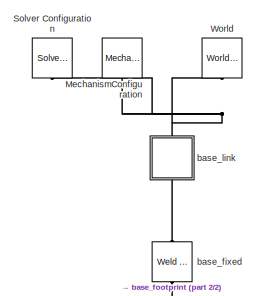
[diagram: root canvas - part 1/2, top center region]
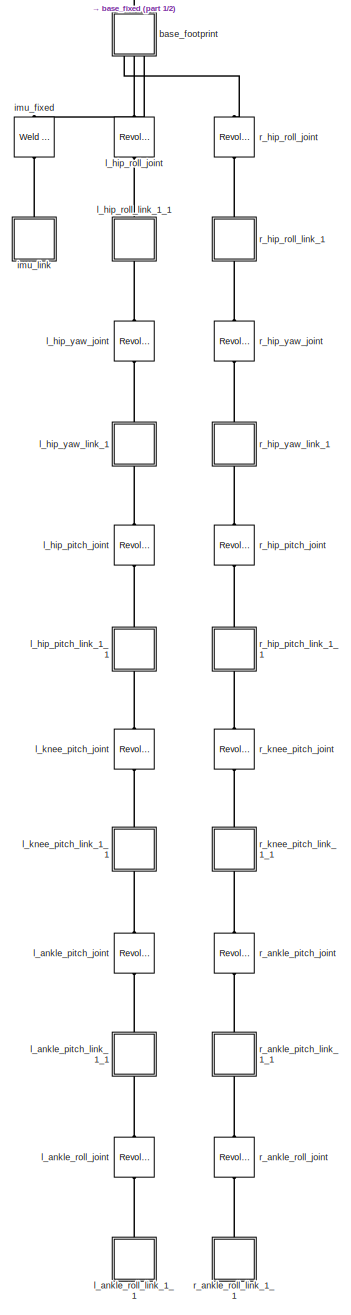
[diagram: root canvas - part 2/2, most of the canvas]
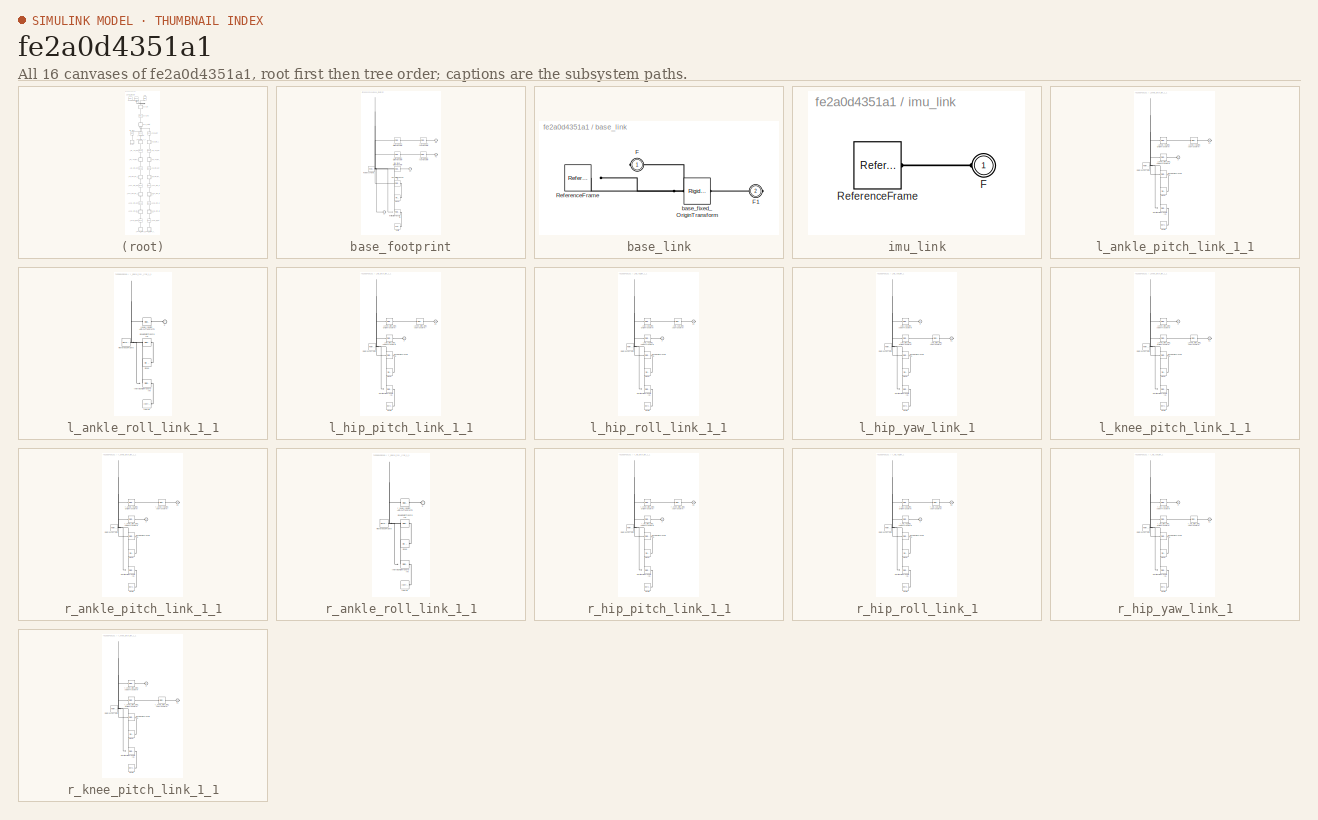
[diagram: thumbnail index - all 16 canvases of the model, root first then tree order]
MODEL slx_fe2a0d4351a1
KIND model
CONFIG AbsTol = auto
CONFIG EnableMultiTasking = off
CONFIG FixedStep = auto
CONFIG MaxStep = auto
CONFIG MinStep = auto
CONFIG RelTol = 1e-3
CONFIG SampleTimeConstraint = Unconstrained
CONFIG Solver = VariableStepAuto
CONFIG SolverName = VariableStepAuto
CONFIG StartTime = 0.0
CONFIG StopTime = 10.0
BLOCK [Reference] MechanismConfiguration  REF=sm_lib/Utilities/Mechanism
Configuration
  Ports = [0, 0, 0, 0, 0, 0, 1]
  SourceBlock = sm_lib/Utilities/Mechanism\nConfiguration
  SourceProductBaseCode = MS
  SourceProductName = Simscape Multibody
  SourceType = Mechanism\nConfiguration
BLOCK [Reference] Solver Configuration  REF=nesl_utility/Solver
Configuration
  Ports = [0, 0, 0, 0, 0, 0, 1]
  SourceBlock = nesl_utility/Solver\nConfiguration
  SourceProductBaseCode = SS
  SourceProductName = Simscape
  SourceType = Solver\nConfiguration
BLOCK [Reference] World  REF=sm_lib/Frames and
Transforms/World Frame
  Ports = [0, 0, 0, 0, 0, 0, 1]
  SourceBlock = sm_lib/Frames and\nTransforms/World Frame
  SourceProductBaseCode = MS
  SourceProductName = Simscape Multibody
  SourceType = World Frame
BLOCK [Reference] base_fixed  REF=sm_lib/Joints/Weld Joint
  Ports = [0, 0, 0, 0, 0, 1, 1]
  SourceBlock = sm_lib/Joints/Weld Joint
  SourceProductBaseCode = MS
  SourceProductName = Simscape Multibody
  SourceType = Weld Joint
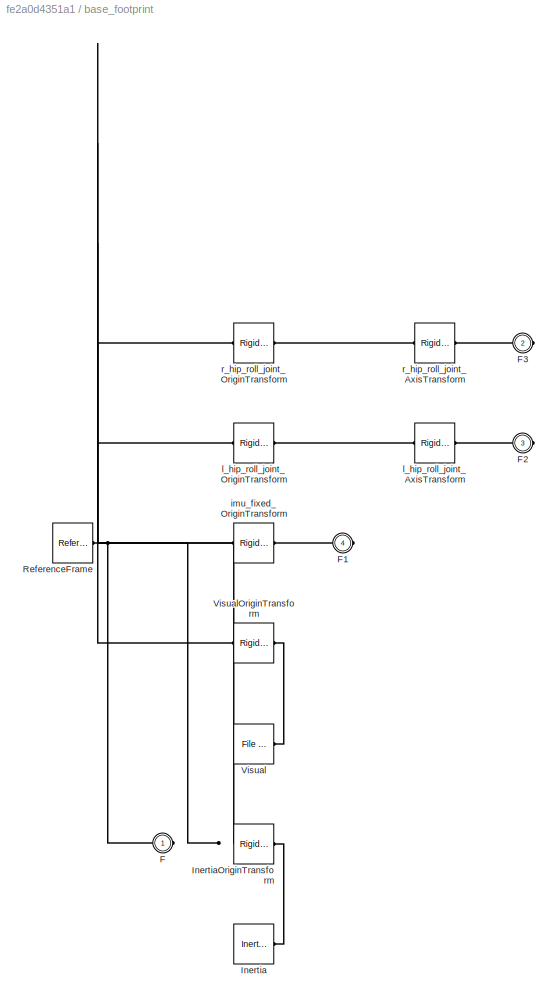
BLOCK [SubSystem] base_footprint
  Ports = [0, 0, 0, 0, 0, 1, 3]
  RequestExecContextInheritance = off
BLOCK [PMIOPort] base_footprint/F
  Side = Left
BLOCK [PMIOPort] base_footprint/F1
  Port = 4
  Side = Right
BLOCK [PMIOPort] base_footprint/F2
  Port = 3
  Side = Right
BLOCK [PMIOPort] base_footprint/F3
  Port = 2
  Side = Right
BLOCK [Reference] base_footprint/Inertia  REF=sm_lib/Body Elements/Inertia
  Ports = [0, 0, 0, 0, 0, 0, 1]
  SourceBlock = sm_lib/Body Elements/Inertia
  SourceProductBaseCode = MS
  SourceProductName = Simscape Multibody
  SourceType = Inertia
BLOCK [Reference] base_footprint/InertiaOriginTransform  REF=sm_lib/Frames and
Transforms/Rigid
Transform
  Ports = [0, 0, 0, 0, 0, 1, 1]
  SourceBlock = sm_lib/Frames and\nTransforms/Rigid\nTransform
  SourceProductBaseCode = MS
  SourceProductName = Simscape Multibody
  SourceType = Rigid\nTransform
BLOCK [Reference] base_footprint/ReferenceFrame  REF=sm_lib/Frames and
Transforms/Reference
Frame
  Ports = [0, 0, 0, 0, 0, 0, 1]
  SourceBlock = sm_lib/Frames and\nTransforms/Reference\nFrame
  SourceProductBaseCode = MS
  SourceProductName = Simscape Multibody
  SourceType = Reference\nFrame
BLOCK [Reference] base_footprint/Visual  REF=sm_lib/Body Elements/File Solid
  Ports = [0, 0, 0, 0, 0, 0, 1]
  SourceBlock = sm_lib/Body Elements/File Solid
  SourceProductBaseCode = MS
  SourceProductName = Simscape Multibody
  SourceType = File Solid
BLOCK [Reference] base_footprint/VisualOriginTransform  REF=sm_lib/Frames and
Transforms/Rigid
Transform
  Ports = [0, 0, 0, 0, 0, 1, 1]
  SourceBlock = sm_lib/Frames and\nTransforms/Rigid\nTransform
  SourceProductBaseCode = MS
  SourceProductName = Simscape Multibody
  SourceType = Rigid\nTransform
BLOCK [Reference] base_footprint/imu_fixed_OriginTransform  REF=sm_lib/Frames and
Transforms/Rigid
Transform
  Ports = [0, 0, 0, 0, 0, 1, 1]
  SourceBlock = sm_lib/Frames and\nTransforms/Rigid\nTransform
  SourceProductBaseCode = MS
  SourceProductName = Simscape Multibody
  SourceType = Rigid\nTransform
BLOCK [Reference] base_footprint/l_hip_roll_joint_AxisTransform  REF=sm_lib/Frames and
Transforms/Rigid
Transform
  Ports = [0, 0, 0, 0, 0, 1, 1]
  SourceBlock = sm_lib/Frames and\nTransforms/Rigid\nTransform
  SourceProductBaseCode = MS
  SourceProductName = Simscape Multibody
  SourceType = Rigid\nTransform
BLOCK [Reference] base_footprint/l_hip_roll_joint_OriginTransform  REF=sm_lib/Frames and
Transforms/Rigid
Transform
  Ports = [0, 0, 0, 0, 0, 1, 1]
  SourceBlock = sm_lib/Frames and\nTransforms/Rigid\nTransform
  SourceProductBaseCode = MS
  SourceProductName = Simscape Multibody
  SourceType = Rigid\nTransform
BLOCK [Reference] base_footprint/r_hip_roll_joint_AxisTransform  REF=sm_lib/Frames and
Transforms/Rigid
Transform
  Ports = [0, 0, 0, 0, 0, 1, 1]
  SourceBlock = sm_lib/Frames and\nTransforms/Rigid\nTransform
  SourceProductBaseCode = MS
  SourceProductName = Simscape Multibody
  SourceType = Rigid\nTransform
BLOCK [Reference] base_footprint/r_hip_roll_joint_OriginTransform  REF=sm_lib/Frames and
Transforms/Rigid
Transform
  Ports = [0, 0, 0, 0, 0, 1, 1]
  SourceBlock = sm_lib/Frames and\nTransforms/Rigid\nTransform
  SourceProductBaseCode = MS
  SourceProductName = Simscape Multibody
  SourceType = Rigid\nTransform
BLOCK [SubSystem] base_link
  Ports = [0, 0, 0, 0, 0, 1, 1]
  RequestExecContextInheritance = off
BLOCK [PMIOPort] base_link/F
  Side = Left
BLOCK [PMIOPort] base_link/F1
  Port = 2
  Side = Right
BLOCK [Reference] base_link/ReferenceFrame  REF=sm_lib/Frames and
Transforms/Reference
Frame
  Ports = [0, 0, 0, 0, 0, 0, 1]
  SourceBlock = sm_lib/Frames and\nTransforms/Reference\nFrame
  SourceProductBaseCode = MS
  SourceProductName = Simscape Multibody
  SourceType = Reference\nFrame
BLOCK [Reference] base_link/base_fixed_OriginTransform  REF=sm_lib/Frames and
Transforms/Rigid
Transform
  Ports = [0, 0, 0, 0, 0, 1, 1]
  SourceBlock = sm_lib/Frames and\nTransforms/Rigid\nTransform
  SourceProductBaseCode = MS
  SourceProductName = Simscape Multibody
  SourceType = Rigid\nTransform
BLOCK [Reference] imu_fixed  REF=sm_lib/Joints/Weld Joint
  Ports = [0, 0, 0, 0, 0, 1, 1]
  SourceBlock = sm_lib/Joints/Weld Joint
  SourceProductBaseCode = MS
  SourceProductName = Simscape Multibody
  SourceType = Weld Joint
BLOCK [SubSystem] imu_link
  Ports = [0, 0, 0, 0, 0, 1]
  RequestExecContextInheritance = off
BLOCK [PMIOPort] imu_link/F
  Side = Left
BLOCK [Reference] imu_link/ReferenceFrame  REF=sm_lib/Frames and
Transforms/Reference
Frame
  Ports = [0, 0, 0, 0, 0, 0, 1]
  SourceBlock = sm_lib/Frames and\nTransforms/Reference\nFrame
  SourceProductBaseCode = MS
  SourceProductName = Simscape Multibody
  SourceType = Reference\nFrame
BLOCK [Reference] l_ankle_pitch_joint  REF=sm_lib/Joints/Revolute Joint
  Ports = [0, 0, 0, 0, 0, 1, 1]
  SourceBlock = sm_lib/Joints/Revolute Joint
  SourceProductBaseCode = MS
  SourceProductName = Simscape Multibody
  SourceType = Revolute Joint
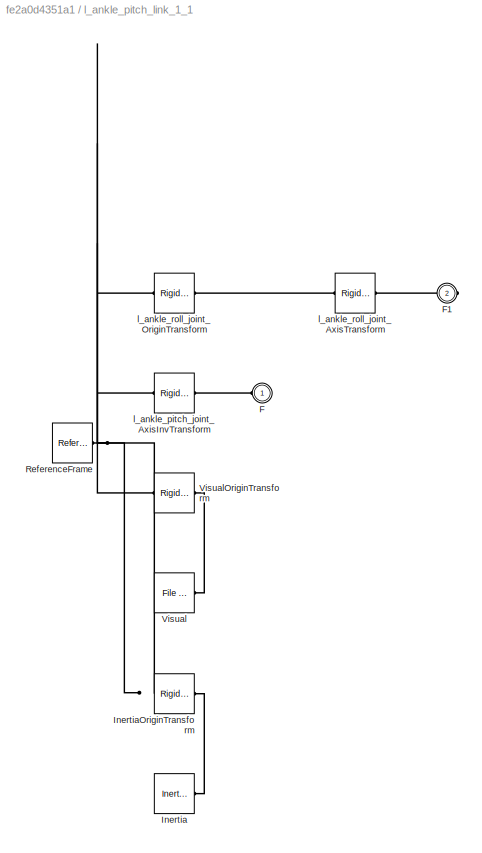
BLOCK [SubSystem] l_ankle_pitch_link_1_1
  Ports = [0, 0, 0, 0, 0, 1, 1]
  RequestExecContextInheritance = off
BLOCK [PMIOPort] l_ankle_pitch_link_1_1/F
  Side = Left
BLOCK [PMIOPort] l_ankle_pitch_link_1_1/F1
  Port = 2
  Side = Right
BLOCK [Reference] l_ankle_pitch_link_1_1/Inertia  REF=sm_lib/Body Elements/Inertia
  Ports = [0, 0, 0, 0, 0, 0, 1]
  SourceBlock = sm_lib/Body Elements/Inertia
  SourceProductBaseCode = MS
  SourceProductName = Simscape Multibody
  SourceType = Inertia
BLOCK [Reference] l_ankle_pitch_link_1_1/InertiaOriginTransform  REF=sm_lib/Frames and
Transforms/Rigid
Transform
  Ports = [0, 0, 0, 0, 0, 1, 1]
  SourceBlock = sm_lib/Frames and\nTransforms/Rigid\nTransform
  SourceProductBaseCode = MS
  SourceProductName = Simscape Multibody
  SourceType = Rigid\nTransform
BLOCK [Reference] l_ankle_pitch_link_1_1/ReferenceFrame  REF=sm_lib/Frames and
Transforms/Reference
Frame
  Ports = [0, 0, 0, 0, 0, 0, 1]
  SourceBlock = sm_lib/Frames and\nTransforms/Reference\nFrame
  SourceProductBaseCode = MS
  SourceProductName = Simscape Multibody
  SourceType = Reference\nFrame
BLOCK [Reference] l_ankle_pitch_link_1_1/Visual  REF=sm_lib/Body Elements/File Solid
  Ports = [0, 0, 0, 0, 0, 0, 1]
  SourceBlock = sm_lib/Body Elements/File Solid
  SourceProductBaseCode = MS
  SourceProductName = Simscape Multibody
  SourceType = File Solid
BLOCK [Reference] l_ankle_pitch_link_1_1/VisualOriginTransform  REF=sm_lib/Frames and
Transforms/Rigid
Transform
  Ports = [0, 0, 0, 0, 0, 1, 1]
  SourceBlock = sm_lib/Frames and\nTransforms/Rigid\nTransform
  SourceProductBaseCode = MS
  SourceProductName = Simscape Multibody
  SourceType = Rigid\nTransform
BLOCK [Reference] l_ankle_pitch_link_1_1/l_ankle_pitch_joint_AxisInvTransform  REF=sm_lib/Frames and
Transforms/Rigid
Transform
  Ports = [0, 0, 0, 0, 0, 1, 1]
  SourceBlock = sm_lib/Frames and\nTransforms/Rigid\nTransform
  SourceProductBaseCode = MS
  SourceProductName = Simscape Multibody
  SourceType = Rigid\nTransform
BLOCK [Reference] l_ankle_pitch_link_1_1/l_ankle_roll_joint_AxisTransform  REF=sm_lib/Frames and
Transforms/Rigid
Transform
  Ports = [0, 0, 0, 0, 0, 1, 1]
  SourceBlock = sm_lib/Frames and\nTransforms/Rigid\nTransform
  SourceProductBaseCode = MS
  SourceProductName = Simscape Multibody
  SourceType = Rigid\nTransform
BLOCK [Reference] l_ankle_pitch_link_1_1/l_ankle_roll_joint_OriginTransform  REF=sm_lib/Frames and
Transforms/Rigid
Transform
  Ports = [0, 0, 0, 0, 0, 1, 1]
  SourceBlock = sm_lib/Frames and\nTransforms/Rigid\nTransform
  SourceProductBaseCode = MS
  SourceProductName = Simscape Multibody
  SourceType = Rigid\nTransform
BLOCK [Reference] l_ankle_roll_joint  REF=sm_lib/Joints/Revolute Joint
  Ports = [0, 0, 0, 0, 0, 1, 1]
  SourceBlock = sm_lib/Joints/Revolute Joint
  SourceProductBaseCode = MS
  SourceProductName = Simscape Multibody
  SourceType = Revolute Joint
BLOCK [SubSystem] l_ankle_roll_link_1_1
  Ports = [0, 0, 0, 0, 0, 1]
  RequestExecContextInheritance = off
BLOCK [PMIOPort] l_ankle_roll_link_1_1/F
  Side = Left
BLOCK [Reference] l_ankle_roll_link_1_1/Inertia  REF=sm_lib/Body Elements/Inertia
  Ports = [0, 0, 0, 0, 0, 0, 1]
  SourceBlock = sm_lib/Body Elements/Inertia
  SourceProductBaseCode = MS
  SourceProductName = Simscape Multibody
  SourceType = Inertia
BLOCK [Reference] l_ankle_roll_link_1_1/InertiaOriginTransform  REF=sm_lib/Frames and
Transforms/Rigid
Transform
  Ports = [0, 0, 0, 0, 0, 1, 1]
  SourceBlock = sm_lib/Frames and\nTransforms/Rigid\nTransform
  SourceProductBaseCode = MS
  SourceProductName = Simscape Multibody
  SourceType = Rigid\nTransform
BLOCK [Reference] l_ankle_roll_link_1_1/ReferenceFrame  REF=sm_lib/Frames and
Transforms/Reference
Frame
  Ports = [0, 0, 0, 0, 0, 0, 1]
  SourceBlock = sm_lib/Frames and\nTransforms/Reference\nFrame
  SourceProductBaseCode = MS
  SourceProductName = Simscape Multibody
  SourceType = Reference\nFrame
BLOCK [Reference] l_ankle_roll_link_1_1/Visual  REF=sm_lib/Body Elements/File Solid
  Ports = [0, 0, 0, 0, 0, 0, 1]
  SourceBlock = sm_lib/Body Elements/File Solid
  SourceProductBaseCode = MS
  SourceProductName = Simscape Multibody
  SourceType = File Solid
BLOCK [Reference] l_ankle_roll_link_1_1/VisualOriginTransform  REF=sm_lib/Frames and
Transforms/Rigid
Transform
  Ports = [0, 0, 0, 0, 0, 1, 1]
  SourceBlock = sm_lib/Frames and\nTransforms/Rigid\nTransform
  SourceProductBaseCode = MS
  SourceProductName = Simscape Multibody
  SourceType = Rigid\nTransform
BLOCK [Reference] l_ankle_roll_link_1_1/l_ankle_roll_joint_AxisInvTransform  REF=sm_lib/Frames and
Transforms/Rigid
Transform
  Ports = [0, 0, 0, 0, 0, 1, 1]
  SourceBlock = sm_lib/Frames and\nTransforms/Rigid\nTransform
  SourceProductBaseCode = MS
  SourceProductName = Simscape Multibody
  SourceType = Rigid\nTransform
BLOCK [Reference] l_hip_pitch_joint  REF=sm_lib/Joints/Revolute Joint
  Ports = [0, 0, 0, 0, 0, 1, 1]
  SourceBlock = sm_lib/Joints/Revolute Joint
  SourceProductBaseCode = MS
  SourceProductName = Simscape Multibody
  SourceType = Revolute Joint
BLOCK [SubSystem] l_hip_pitch_link_1_1
  Ports = [0, 0, 0, 0, 0, 1, 1]
  RequestExecContextInheritance = off
BLOCK [PMIOPort] l_hip_pitch_link_1_1/F
  Side = Left
BLOCK [PMIOPort] l_hip_pitch_link_1_1/F1
  Port = 2
  Side = Right
BLOCK [Reference] l_hip_pitch_link_1_1/Inertia  REF=sm_lib/Body Elements/Inertia
  Ports = [0, 0, 0, 0, 0, 0, 1]
  SourceBlock = sm_lib/Body Elements/Inertia
  SourceProductBaseCode = MS
  SourceProductName = Simscape Multibody
  SourceType = Inertia
BLOCK [Reference] l_hip_pitch_link_1_1/InertiaOriginTransform  REF=sm_lib/Frames and
Transforms/Rigid
Transform
  Ports = [0, 0, 0, 0, 0, 1, 1]
  SourceBlock = sm_lib/Frames and\nTransforms/Rigid\nTransform
  SourceProductBaseCode = MS
  SourceProductName = Simscape Multibody
  SourceType = Rigid\nTransform
BLOCK [Reference] l_hip_pitch_link_1_1/ReferenceFrame  REF=sm_lib/Frames and
Transforms/Reference
Frame
  Ports = [0, 0, 0, 0, 0, 0, 1]
  SourceBlock = sm_lib/Frames and\nTransforms/Reference\nFrame
  SourceProductBaseCode = MS
  SourceProductName = Simscape Multibody
  SourceType = Reference\nFrame
BLOCK [Reference] l_hip_pitch_link_1_1/Visual  REF=sm_lib/Body Elements/File Solid
  Ports = [0, 0, 0, 0, 0, 0, 1]
  SourceBlock = sm_lib/Body Elements/File Solid
  SourceProductBaseCode = MS
  SourceProductName = Simscape Multibody
  SourceType = File Solid
BLOCK [Reference] l_hip_pitch_link_1_1/VisualOriginTransform  REF=sm_lib/Frames and
Transforms/Rigid
Transform
  Ports = [0, 0, 0, 0, 0, 1, 1]
  SourceBlock = sm_lib/Frames and\nTransforms/Rigid\nTransform
  SourceProductBaseCode = MS
  SourceProductName = Simscape Multibody
  SourceType = Rigid\nTransform
BLOCK [Reference] l_hip_pitch_link_1_1/l_hip_pitch_joint_AxisInvTransform  REF=sm_lib/Frames and
Transforms/Rigid
Transform
  Ports = [0, 0, 0, 0, 0, 1, 1]
  SourceBlock = sm_lib/Frames and\nTransforms/Rigid\nTransform
  SourceProductBaseCode = MS
  SourceProductName = Simscape Multibody
  SourceType = Rigid\nTransform
BLOCK [Reference] l_hip_pitch_link_1_1/l_knee_pitch_joint_AxisTransform  REF=sm_lib/Frames and
Transforms/Rigid
Transform
  Ports = [0, 0, 0, 0, 0, 1, 1]
  SourceBlock = sm_lib/Frames and\nTransforms/Rigid\nTransform
  SourceProductBaseCode = MS
  SourceProductName = Simscape Multibody
  SourceType = Rigid\nTransform
BLOCK [Reference] l_hip_pitch_link_1_1/l_knee_pitch_joint_OriginTransform  REF=sm_lib/Frames and
Transforms/Rigid
Transform
  Ports = [0, 0, 0, 0, 0, 1, 1]
  SourceBlock = sm_lib/Frames and\nTransforms/Rigid\nTransform
  SourceProductBaseCode = MS
  SourceProductName = Simscape Multibody
  SourceType = Rigid\nTransform
BLOCK [Reference] l_hip_roll_joint  REF=sm_lib/Joints/Revolute Joint
  Ports = [0, 0, 0, 0, 0, 1, 1]
  SourceBlock = sm_lib/Joints/Revolute Joint
  SourceProductBaseCode = MS
  SourceProductName = Simscape Multibody
  SourceType = Revolute Joint
BLOCK [SubSystem] l_hip_roll_link_1_1
  Ports = [0, 0, 0, 0, 0, 1, 1]
  RequestExecContextInheritance = off
BLOCK [PMIOPort] l_hip_roll_link_1_1/F
  Side = Left
BLOCK [PMIOPort] l_hip_roll_link_1_1/F1
  Port = 2
  Side = Right
BLOCK [Reference] l_hip_roll_link_1_1/Inertia  REF=sm_lib/Body Elements/Inertia
  Ports = [0, 0, 0, 0, 0, 0, 1]
  SourceBlock = sm_lib/Body Elements/Inertia
  SourceProductBaseCode = MS
  SourceProductName = Simscape Multibody
  SourceType = Inertia
BLOCK [Reference] l_hip_roll_link_1_1/InertiaOriginTransform  REF=sm_lib/Frames and
Transforms/Rigid
Transform
  Ports = [0, 0, 0, 0, 0, 1, 1]
  SourceBlock = sm_lib/Frames and\nTransforms/Rigid\nTransform
  SourceProductBaseCode = MS
  SourceProductName = Simscape Multibody
  SourceType = Rigid\nTransform
BLOCK [Reference] l_hip_roll_link_1_1/ReferenceFrame  REF=sm_lib/Frames and
Transforms/Reference
Frame
  Ports = [0, 0, 0, 0, 0, 0, 1]
  SourceBlock = sm_lib/Frames and\nTransforms/Reference\nFrame
  SourceProductBaseCode = MS
  SourceProductName = Simscape Multibody
  SourceType = Reference\nFrame
BLOCK [Reference] l_hip_roll_link_1_1/Visual  REF=sm_lib/Body Elements/File Solid
  Ports = [0, 0, 0, 0, 0, 0, 1]
  SourceBlock = sm_lib/Body Elements/File Solid
  SourceProductBaseCode = MS
  SourceProductName = Simscape Multibody
  SourceType = File Solid
BLOCK [Reference] l_hip_roll_link_1_1/VisualOriginTransform  REF=sm_lib/Frames and
Transforms/Rigid
Transform
  Ports = [0, 0, 0, 0, 0, 1, 1]
  SourceBlock = sm_lib/Frames and\nTransforms/Rigid\nTransform
  SourceProductBaseCode = MS
  SourceProductName = Simscape Multibody
  SourceType = Rigid\nTransform
BLOCK [Reference] l_hip_roll_link_1_1/l_hip_roll_joint_AxisInvTransform  REF=sm_lib/Frames and
Transforms/Rigid
Transform
  Ports = [0, 0, 0, 0, 0, 1, 1]
  SourceBlock = sm_lib/Frames and\nTransforms/Rigid\nTransform
  SourceProductBaseCode = MS
  SourceProductName = Simscape Multibody
  SourceType = Rigid\nTransform
BLOCK [Reference] l_hip_roll_link_1_1/l_hip_yaw_joint_AxisTransform  REF=sm_lib/Frames and
Transforms/Rigid
Transform
  Ports = [0, 0, 0, 0, 0, 1, 1]
  SourceBlock = sm_lib/Frames and\nTransforms/Rigid\nTransform
  SourceProductBaseCode = MS
  SourceProductName = Simscape Multibody
  SourceType = Rigid\nTransform
BLOCK [Reference] l_hip_roll_link_1_1/l_hip_yaw_joint_OriginTransform  REF=sm_lib/Frames and
Transforms/Rigid
Transform
  Ports = [0, 0, 0, 0, 0, 1, 1]
  SourceBlock = sm_lib/Frames and\nTransforms/Rigid\nTransform
  SourceProductBaseCode = MS
  SourceProductName = Simscape Multibody
  SourceType = Rigid\nTransform
BLOCK [Reference] l_hip_yaw_joint  REF=sm_lib/Joints/Revolute Joint
  Ports = [0, 0, 0, 0, 0, 1, 1]
  SourceBlock = sm_lib/Joints/Revolute Joint
  SourceProductBaseCode = MS
  SourceProductName = Simscape Multibody
  SourceType = Revolute Joint
BLOCK [SubSystem] l_hip_yaw_link_1
  Ports = [0, 0, 0, 0, 0, 1, 1]
  RequestExecContextInheritance = off
BLOCK [PMIOPort] l_hip_yaw_link_1/F
  Side = Left
BLOCK [PMIOPort] l_hip_yaw_link_1/F1
  Port = 2
  Side = Right
BLOCK [Reference] l_hip_yaw_link_1/Inertia  REF=sm_lib/Body Elements/Inertia
  Ports = [0, 0, 0, 0, 0, 0, 1]
  SourceBlock = sm_lib/Body Elements/Inertia
  SourceProductBaseCode = MS
  SourceProductName = Simscape Multibody
  SourceType = Inertia
BLOCK [Reference] l_hip_yaw_link_1/InertiaOriginTransform  REF=sm_lib/Frames and
Transforms/Rigid
Transform
  Ports = [0, 0, 0, 0, 0, 1, 1]
  SourceBlock = sm_lib/Frames and\nTransforms/Rigid\nTransform
  SourceProductBaseCode = MS
  SourceProductName = Simscape Multibody
  SourceType = Rigid\nTransform
BLOCK [Reference] l_hip_yaw_link_1/ReferenceFrame  REF=sm_lib/Frames and
Transforms/Reference
Frame
  Ports = [0, 0, 0, 0, 0, 0, 1]
  SourceBlock = sm_lib/Frames and\nTransforms/Reference\nFrame
  SourceProductBaseCode = MS
  SourceProductName = Simscape Multibody
  SourceType = Reference\nFrame
BLOCK [Reference] l_hip_yaw_link_1/Visual  REF=sm_lib/Body Elements/File Solid
  Ports = [0, 0, 0, 0, 0, 0, 1]
  SourceBlock = sm_lib/Body Elements/File Solid
  SourceProductBaseCode = MS
  SourceProductName = Simscape Multibody
  SourceType = File Solid
BLOCK [Reference] l_hip_yaw_link_1/VisualOriginTransform  REF=sm_lib/Frames and
Transforms/Rigid
Transform
  Ports = [0, 0, 0, 0, 0, 1, 1]
  SourceBlock = sm_lib/Frames and\nTransforms/Rigid\nTransform
  SourceProductBaseCode = MS
  SourceProductName = Simscape Multibody
  SourceType = Rigid\nTransform
BLOCK [Reference] l_hip_yaw_link_1/l_hip_pitch_joint_AxisTransform  REF=sm_lib/Frames and
Transforms/Rigid
Transform
  Ports = [0, 0, 0, 0, 0, 1, 1]
  SourceBlock = sm_lib/Frames and\nTransforms/Rigid\nTransform
  SourceProductBaseCode = MS
  SourceProductName = Simscape Multibody
  SourceType = Rigid\nTransform
BLOCK [Reference] l_hip_yaw_link_1/l_hip_pitch_joint_OriginTransform  REF=sm_lib/Frames and
Transforms/Rigid
Transform
  Ports = [0, 0, 0, 0, 0, 1, 1]
  SourceBlock = sm_lib/Frames and\nTransforms/Rigid\nTransform
  SourceProductBaseCode = MS
  SourceProductName = Simscape Multibody
  SourceType = Rigid\nTransform
BLOCK [Reference] l_hip_yaw_link_1/l_hip_yaw_joint_AxisInvTransform  REF=sm_lib/Frames and
Transforms/Rigid
Transform
  Ports = [0, 0, 0, 0, 0, 1, 1]
  SourceBlock = sm_lib/Frames and\nTransforms/Rigid\nTransform
  SourceProductBaseCode = MS
  SourceProductName = Simscape Multibody
  SourceType = Rigid\nTransform
BLOCK [Reference] l_knee_pitch_joint  REF=sm_lib/Joints/Revolute Joint
  Ports = [0, 0, 0, 0, 0, 1, 1]
  SourceBlock = sm_lib/Joints/Revolute Joint
  SourceProductBaseCode = MS
  SourceProductName = Simscape Multibody
  SourceType = Revolute Joint
BLOCK [SubSystem] l_knee_pitch_link_1_1
  Ports = [0, 0, 0, 0, 0, 1, 1]
  RequestExecContextInheritance = off
BLOCK [PMIOPort] l_knee_pitch_link_1_1/F
  Side = Left
BLOCK [PMIOPort] l_knee_pitch_link_1_1/F1
  Port = 2
  Side = Right
BLOCK [Reference] l_knee_pitch_link_1_1/Inertia  REF=sm_lib/Body Elements/Inertia
  Ports = [0, 0, 0, 0, 0, 0, 1]
  SourceBlock = sm_lib/Body Elements/Inertia
  SourceProductBaseCode = MS
  SourceProductName = Simscape Multibody
  SourceType = Inertia
BLOCK [Reference] l_knee_pitch_link_1_1/InertiaOriginTransform  REF=sm_lib/Frames and
Transforms/Rigid
Transform
  Ports = [0, 0, 0, 0, 0, 1, 1]
  SourceBlock = sm_lib/Frames and\nTransforms/Rigid\nTransform
  SourceProductBaseCode = MS
  SourceProductName = Simscape Multibody
  SourceType = Rigid\nTransform
BLOCK [Reference] l_knee_pitch_link_1_1/ReferenceFrame  REF=sm_lib/Frames and
Transforms/Reference
Frame
  Ports = [0, 0, 0, 0, 0, 0, 1]
  SourceBlock = sm_lib/Frames and\nTransforms/Reference\nFrame
  SourceProductBaseCode = MS
  SourceProductName = Simscape Multibody
  SourceType = Reference\nFrame
BLOCK [Reference] l_knee_pitch_link_1_1/Visual  REF=sm_lib/Body Elements/File Solid
  Ports = [0, 0, 0, 0, 0, 0, 1]
  SourceBlock = sm_lib/Body Elements/File Solid
  SourceProductBaseCode = MS
  SourceProductName = Simscape Multibody
  SourceType = File Solid
BLOCK [Reference] l_knee_pitch_link_1_1/VisualOriginTransform  REF=sm_lib/Frames and
Transforms/Rigid
Transform
  Ports = [0, 0, 0, 0, 0, 1, 1]
  SourceBlock = sm_lib/Frames and\nTransforms/Rigid\nTransform
  SourceProductBaseCode = MS
  SourceProductName = Simscape Multibody
  SourceType = Rigid\nTransform
BLOCK [Reference] l_knee_pitch_link_1_1/l_ankle_pitch_joint_AxisTransform  REF=sm_lib/Frames and
Transforms/Rigid
Transform
  Ports = [0, 0, 0, 0, 0, 1, 1]
  SourceBlock = sm_lib/Frames and\nTransforms/Rigid\nTransform
  SourceProductBaseCode = MS
  SourceProductName = Simscape Multibody
  SourceType = Rigid\nTransform
BLOCK [Reference] l_knee_pitch_link_1_1/l_ankle_pitch_joint_OriginTransform  REF=sm_lib/Frames and
Transforms/Rigid
Transform
  Ports = [0, 0, 0, 0, 0, 1, 1]
  SourceBlock = sm_lib/Frames and\nTransforms/Rigid\nTransform
  SourceProductBaseCode = MS
  SourceProductName = Simscape Multibody
  SourceType = Rigid\nTransform
BLOCK [Reference] l_knee_pitch_link_1_1/l_knee_pitch_joint_AxisInvTransform  REF=sm_lib/Frames and
Transforms/Rigid
Transform
  Ports = [0, 0, 0, 0, 0, 1, 1]
  SourceBlock = sm_lib/Frames and\nTransforms/Rigid\nTransform
  SourceProductBaseCode = MS
  SourceProductName = Simscape Multibody
  SourceType = Rigid\nTransform
BLOCK [Reference] r_ankle_pitch_joint  REF=sm_lib/Joints/Revolute Joint
  Ports = [0, 0, 0, 0, 0, 1, 1]
  SourceBlock = sm_lib/Joints/Revolute Joint
  SourceProductBaseCode = MS
  SourceProductName = Simscape Multibody
  SourceType = Revolute Joint
BLOCK [SubSystem] r_ankle_pitch_link_1_1
  Ports = [0, 0, 0, 0, 0, 1, 1]
  RequestExecContextInheritance = off
BLOCK [PMIOPort] r_ankle_pitch_link_1_1/F
  Side = Left
BLOCK [PMIOPort] r_ankle_pitch_link_1_1/F1
  Port = 2
  Side = Right
BLOCK [Reference] r_ankle_pitch_link_1_1/Inertia  REF=sm_lib/Body Elements/Inertia
  Ports = [0, 0, 0, 0, 0, 0, 1]
  SourceBlock = sm_lib/Body Elements/Inertia
  SourceProductBaseCode = MS
  SourceProductName = Simscape Multibody
  SourceType = Inertia
BLOCK [Reference] r_ankle_pitch_link_1_1/InertiaOriginTransform  REF=sm_lib/Frames and
Transforms/Rigid
Transform
  Ports = [0, 0, 0, 0, 0, 1, 1]
  SourceBlock = sm_lib/Frames and\nTransforms/Rigid\nTransform
  SourceProductBaseCode = MS
  SourceProductName = Simscape Multibody
  SourceType = Rigid\nTransform
BLOCK [Reference] r_ankle_pitch_link_1_1/ReferenceFrame  REF=sm_lib/Frames and
Transforms/Reference
Frame
  Ports = [0, 0, 0, 0, 0, 0, 1]
  SourceBlock = sm_lib/Frames and\nTransforms/Reference\nFrame
  SourceProductBaseCode = MS
  SourceProductName = Simscape Multibody
  SourceType = Reference\nFrame
BLOCK [Reference] r_ankle_pitch_link_1_1/Visual  REF=sm_lib/Body Elements/File Solid
  Ports = [0, 0, 0, 0, 0, 0, 1]
  SourceBlock = sm_lib/Body Elements/File Solid
  SourceProductBaseCode = MS
  SourceProductName = Simscape Multibody
  SourceType = File Solid
BLOCK [Reference] r_ankle_pitch_link_1_1/VisualOriginTransform  REF=sm_lib/Frames and
Transforms/Rigid
Transform
  Ports = [0, 0, 0, 0, 0, 1, 1]
  SourceBlock = sm_lib/Frames and\nTransforms/Rigid\nTransform
  SourceProductBaseCode = MS
  SourceProductName = Simscape Multibody
  SourceType = Rigid\nTransform
BLOCK [Reference] r_ankle_pitch_link_1_1/r_ankle_pitch_joint_AxisInvTransform  REF=sm_lib/Frames and
Transforms/Rigid
Transform
  Ports = [0, 0, 0, 0, 0, 1, 1]
  SourceBlock = sm_lib/Frames and\nTransforms/Rigid\nTransform
  SourceProductBaseCode = MS
  SourceProductName = Simscape Multibody
  SourceType = Rigid\nTransform
BLOCK [Reference] r_ankle_pitch_link_1_1/r_ankle_roll_joint_AxisTransform  REF=sm_lib/Frames and
Transforms/Rigid
Transform
  Ports = [0, 0, 0, 0, 0, 1, 1]
  SourceBlock = sm_lib/Frames and\nTransforms/Rigid\nTransform
  SourceProductBaseCode = MS
  SourceProductName = Simscape Multibody
  SourceType = Rigid\nTransform
BLOCK [Reference] r_ankle_pitch_link_1_1/r_ankle_roll_joint_OriginTransform  REF=sm_lib/Frames and
Transforms/Rigid
Transform
  Ports = [0, 0, 0, 0, 0, 1, 1]
  SourceBlock = sm_lib/Frames and\nTransforms/Rigid\nTransform
  SourceProductBaseCode = MS
  SourceProductName = Simscape Multibody
  SourceType = Rigid\nTransform
BLOCK [Reference] r_ankle_roll_joint  REF=sm_lib/Joints/Revolute Joint
  Ports = [0, 0, 0, 0, 0, 1, 1]
  SourceBlock = sm_lib/Joints/Revolute Joint
  SourceProductBaseCode = MS
  SourceProductName = Simscape Multibody
  SourceType = Revolute Joint
BLOCK [SubSystem] r_ankle_roll_link_1_1
  Ports = [0, 0, 0, 0, 0, 1]
  RequestExecContextInheritance = off
BLOCK [PMIOPort] r_ankle_roll_link_1_1/F
  Side = Left
BLOCK [Reference] r_ankle_roll_link_1_1/Inertia  REF=sm_lib/Body Elements/Inertia
  Ports = [0, 0, 0, 0, 0, 0, 1]
  SourceBlock = sm_lib/Body Elements/Inertia
  SourceProductBaseCode = MS
  SourceProductName = Simscape Multibody
  SourceType = Inertia
BLOCK [Reference] r_ankle_roll_link_1_1/InertiaOriginTransform  REF=sm_lib/Frames and
Transforms/Rigid
Transform
  Ports = [0, 0, 0, 0, 0, 1, 1]
  SourceBlock = sm_lib/Frames and\nTransforms/Rigid\nTransform
  SourceProductBaseCode = MS
  SourceProductName = Simscape Multibody
  SourceType = Rigid\nTransform
BLOCK [Reference] r_ankle_roll_link_1_1/ReferenceFrame  REF=sm_lib/Frames and
Transforms/Reference
Frame
  Ports = [0, 0, 0, 0, 0, 0, 1]
  SourceBlock = sm_lib/Frames and\nTransforms/Reference\nFrame
  SourceProductBaseCode = MS
  SourceProductName = Simscape Multibody
  SourceType = Reference\nFrame
BLOCK [Reference] r_ankle_roll_link_1_1/Visual  REF=sm_lib/Body Elements/File Solid
  Ports = [0, 0, 0, 0, 0, 0, 1]
  SourceBlock = sm_lib/Body Elements/File Solid
  SourceProductBaseCode = MS
  SourceProductName = Simscape Multibody
  SourceType = File Solid
BLOCK [Reference] r_ankle_roll_link_1_1/VisualOriginTransform  REF=sm_lib/Frames and
Transforms/Rigid
Transform
  Ports = [0, 0, 0, 0, 0, 1, 1]
  SourceBlock = sm_lib/Frames and\nTransforms/Rigid\nTransform
  SourceProductBaseCode = MS
  SourceProductName = Simscape Multibody
  SourceType = Rigid\nTransform
BLOCK [Reference] r_ankle_roll_link_1_1/r_ankle_roll_joint_AxisInvTransform  REF=sm_lib/Frames and
Transforms/Rigid
Transform
  Ports = [0, 0, 0, 0, 0, 1, 1]
  SourceBlock = sm_lib/Frames and\nTransforms/Rigid\nTransform
  SourceProductBaseCode = MS
  SourceProductName = Simscape Multibody
  SourceType = Rigid\nTransform
BLOCK [Reference] r_hip_pitch_joint  REF=sm_lib/Joints/Revolute Joint
  Ports = [0, 0, 0, 0, 0, 1, 1]
  SourceBlock = sm_lib/Joints/Revolute Joint
  SourceProductBaseCode = MS
  SourceProductName = Simscape Multibody
  SourceType = Revolute Joint
BLOCK [SubSystem] r_hip_pitch_link_1_1
  Ports = [0, 0, 0, 0, 0, 1, 1]
  RequestExecContextInheritance = off
BLOCK [PMIOPort] r_hip_pitch_link_1_1/F
  Side = Left
BLOCK [PMIOPort] r_hip_pitch_link_1_1/F1
  Port = 2
  Side = Right
BLOCK [Reference] r_hip_pitch_link_1_1/Inertia  REF=sm_lib/Body Elements/Inertia
  Ports = [0, 0, 0, 0, 0, 0, 1]
  SourceBlock = sm_lib/Body Elements/Inertia
  SourceProductBaseCode = MS
  SourceProductName = Simscape Multibody
  SourceType = Inertia
BLOCK [Reference] r_hip_pitch_link_1_1/InertiaOriginTransform  REF=sm_lib/Frames and
Transforms/Rigid
Transform
  Ports = [0, 0, 0, 0, 0, 1, 1]
  SourceBlock = sm_lib/Frames and\nTransforms/Rigid\nTransform
  SourceProductBaseCode = MS
  SourceProductName = Simscape Multibody
  SourceType = Rigid\nTransform
BLOCK [Reference] r_hip_pitch_link_1_1/ReferenceFrame  REF=sm_lib/Frames and
Transforms/Reference
Frame
  Ports = [0, 0, 0, 0, 0, 0, 1]
  SourceBlock = sm_lib/Frames and\nTransforms/Reference\nFrame
  SourceProductBaseCode = MS
  SourceProductName = Simscape Multibody
  SourceType = Reference\nFrame
BLOCK [Reference] r_hip_pitch_link_1_1/Visual  REF=sm_lib/Body Elements/File Solid
  Ports = [0, 0, 0, 0, 0, 0, 1]
  SourceBlock = sm_lib/Body Elements/File Solid
  SourceProductBaseCode = MS
  SourceProductName = Simscape Multibody
  SourceType = File Solid
BLOCK [Reference] r_hip_pitch_link_1_1/VisualOriginTransform  REF=sm_lib/Frames and
Transforms/Rigid
Transform
  Ports = [0, 0, 0, 0, 0, 1, 1]
  SourceBlock = sm_lib/Frames and\nTransforms/Rigid\nTransform
  SourceProductBaseCode = MS
  SourceProductName = Simscape Multibody
  SourceType = Rigid\nTransform
BLOCK [Reference] r_hip_pitch_link_1_1/r_hip_pitch_joint_AxisInvTransform  REF=sm_lib/Frames and
Transforms/Rigid
Transform
  Ports = [0, 0, 0, 0, 0, 1, 1]
  SourceBlock = sm_lib/Frames and\nTransforms/Rigid\nTransform
  SourceProductBaseCode = MS
  SourceProductName = Simscape Multibody
  SourceType = Rigid\nTransform
BLOCK [Reference] r_hip_pitch_link_1_1/r_knee_pitch_joint_AxisTransform  REF=sm_lib/Frames and
Transforms/Rigid
Transform
  Ports = [0, 0, 0, 0, 0, 1, 1]
  SourceBlock = sm_lib/Frames and\nTransforms/Rigid\nTransform
  SourceProductBaseCode = MS
  SourceProductName = Simscape Multibody
  SourceType = Rigid\nTransform
BLOCK [Reference] r_hip_pitch_link_1_1/r_knee_pitch_joint_OriginTransform  REF=sm_lib/Frames and
Transforms/Rigid
Transform
  Ports = [0, 0, 0, 0, 0, 1, 1]
  SourceBlock = sm_lib/Frames and\nTransforms/Rigid\nTransform
  SourceProductBaseCode = MS
  SourceProductName = Simscape Multibody
  SourceType = Rigid\nTransform
BLOCK [Reference] r_hip_roll_joint  REF=sm_lib/Joints/Revolute Joint
  Ports = [0, 0, 0, 0, 0, 1, 1]
  SourceBlock = sm_lib/Joints/Revolute Joint
  SourceProductBaseCode = MS
  SourceProductName = Simscape Multibody
  SourceType = Revolute Joint
BLOCK [SubSystem] r_hip_roll_link_1
  Ports = [0, 0, 0, 0, 0, 1, 1]
  RequestExecContextInheritance = off
BLOCK [PMIOPort] r_hip_roll_link_1/F
  Side = Left
BLOCK [PMIOPort] r_hip_roll_link_1/F1
  Port = 2
  Side = Right
BLOCK [Reference] r_hip_roll_link_1/Inertia  REF=sm_lib/Body Elements/Inertia
  Ports = [0, 0, 0, 0, 0, 0, 1]
  SourceBlock = sm_lib/Body Elements/Inertia
  SourceProductBaseCode = MS
  SourceProductName = Simscape Multibody
  SourceType = Inertia
BLOCK [Reference] r_hip_roll_link_1/InertiaOriginTransform  REF=sm_lib/Frames and
Transforms/Rigid
Transform
  Ports = [0, 0, 0, 0, 0, 1, 1]
  SourceBlock = sm_lib/Frames and\nTransforms/Rigid\nTransform
  SourceProductBaseCode = MS
  SourceProductName = Simscape Multibody
  SourceType = Rigid\nTransform
BLOCK [Reference] r_hip_roll_link_1/ReferenceFrame  REF=sm_lib/Frames and
Transforms/Reference
Frame
  Ports = [0, 0, 0, 0, 0, 0, 1]
  SourceBlock = sm_lib/Frames and\nTransforms/Reference\nFrame
  SourceProductBaseCode = MS
  SourceProductName = Simscape Multibody
  SourceType = Reference\nFrame
BLOCK [Reference] r_hip_roll_link_1/Visual  REF=sm_lib/Body Elements/File Solid
  Ports = [0, 0, 0, 0, 0, 0, 1]
  SourceBlock = sm_lib/Body Elements/File Solid
  SourceProductBaseCode = MS
  SourceProductName = Simscape Multibody
  SourceType = File Solid
BLOCK [Reference] r_hip_roll_link_1/VisualOriginTransform  REF=sm_lib/Frames and
Transforms/Rigid
Transform
  Ports = [0, 0, 0, 0, 0, 1, 1]
  SourceBlock = sm_lib/Frames and\nTransforms/Rigid\nTransform
  SourceProductBaseCode = MS
  SourceProductName = Simscape Multibody
  SourceType = Rigid\nTransform
BLOCK [Reference] r_hip_roll_link_1/r_hip_roll_joint_AxisInvTransform  REF=sm_lib/Frames and
Transforms/Rigid
Transform
  Ports = [0, 0, 0, 0, 0, 1, 1]
  SourceBlock = sm_lib/Frames and\nTransforms/Rigid\nTransform
  SourceProductBaseCode = MS
  SourceProductName = Simscape Multibody
  SourceType = Rigid\nTransform
BLOCK [Reference] r_hip_roll_link_1/r_hip_yaw_joint_AxisTransform  REF=sm_lib/Frames and
Transforms/Rigid
Transform
  Ports = [0, 0, 0, 0, 0, 1, 1]
  SourceBlock = sm_lib/Frames and\nTransforms/Rigid\nTransform
  SourceProductBaseCode = MS
  SourceProductName = Simscape Multibody
  SourceType = Rigid\nTransform
BLOCK [Reference] r_hip_roll_link_1/r_hip_yaw_joint_OriginTransform  REF=sm_lib/Frames and
Transforms/Rigid
Transform
  Ports = [0, 0, 0, 0, 0, 1, 1]
  SourceBlock = sm_lib/Frames and\nTransforms/Rigid\nTransform
  SourceProductBaseCode = MS
  SourceProductName = Simscape Multibody
  SourceType = Rigid\nTransform
BLOCK [Reference] r_hip_yaw_joint  REF=sm_lib/Joints/Revolute Joint
  Ports = [0, 0, 0, 0, 0, 1, 1]
  SourceBlock = sm_lib/Joints/Revolute Joint
  SourceProductBaseCode = MS
  SourceProductName = Simscape Multibody
  SourceType = Revolute Joint
BLOCK [SubSystem] r_hip_yaw_link_1
  Ports = [0, 0, 0, 0, 0, 1, 1]
  RequestExecContextInheritance = off
BLOCK [PMIOPort] r_hip_yaw_link_1/F
  Side = Left
BLOCK [PMIOPort] r_hip_yaw_link_1/F1
  Port = 2
  Side = Right
BLOCK [Reference] r_hip_yaw_link_1/Inertia  REF=sm_lib/Body Elements/Inertia
  Ports = [0, 0, 0, 0, 0, 0, 1]
  SourceBlock = sm_lib/Body Elements/Inertia
  SourceProductBaseCode = MS
  SourceProductName = Simscape Multibody
  SourceType = Inertia
BLOCK [Reference] r_hip_yaw_link_1/InertiaOriginTransform  REF=sm_lib/Frames and
Transforms/Rigid
Transform
  Ports = [0, 0, 0, 0, 0, 1, 1]
  SourceBlock = sm_lib/Frames and\nTransforms/Rigid\nTransform
  SourceProductBaseCode = MS
  SourceProductName = Simscape Multibody
  SourceType = Rigid\nTransform
BLOCK [Reference] r_hip_yaw_link_1/ReferenceFrame  REF=sm_lib/Frames and
Transforms/Reference
Frame
  Ports = [0, 0, 0, 0, 0, 0, 1]
  SourceBlock = sm_lib/Frames and\nTransforms/Reference\nFrame
  SourceProductBaseCode = MS
  SourceProductName = Simscape Multibody
  SourceType = Reference\nFrame
BLOCK [Reference] r_hip_yaw_link_1/Visual  REF=sm_lib/Body Elements/File Solid
  Ports = [0, 0, 0, 0, 0, 0, 1]
  SourceBlock = sm_lib/Body Elements/File Solid
  SourceProductBaseCode = MS
  SourceProductName = Simscape Multibody
  SourceType = File Solid
BLOCK [Reference] r_hip_yaw_link_1/VisualOriginTransform  REF=sm_lib/Frames and
Transforms/Rigid
Transform
  Ports = [0, 0, 0, 0, 0, 1, 1]
  SourceBlock = sm_lib/Frames and\nTransforms/Rigid\nTransform
  SourceProductBaseCode = MS
  SourceProductName = Simscape Multibody
  SourceType = Rigid\nTransform
BLOCK [Reference] r_hip_yaw_link_1/r_hip_pitch_joint_AxisTransform  REF=sm_lib/Frames and
Transforms/Rigid
Transform
  Ports = [0, 0, 0, 0, 0, 1, 1]
  SourceBlock = sm_lib/Frames and\nTransforms/Rigid\nTransform
  SourceProductBaseCode = MS
  SourceProductName = Simscape Multibody
  SourceType = Rigid\nTransform
BLOCK [Reference] r_hip_yaw_link_1/r_hip_pitch_joint_OriginTransform  REF=sm_lib/Frames and
Transforms/Rigid
Transform
  Ports = [0, 0, 0, 0, 0, 1, 1]
  SourceBlock = sm_lib/Frames and\nTransforms/Rigid\nTransform
  SourceProductBaseCode = MS
  SourceProductName = Simscape Multibody
  SourceType = Rigid\nTransform
BLOCK [Reference] r_hip_yaw_link_1/r_hip_yaw_joint_AxisInvTransform  REF=sm_lib/Frames and
Transforms/Rigid
Transform
  Ports = [0, 0, 0, 0, 0, 1, 1]
  SourceBlock = sm_lib/Frames and\nTransforms/Rigid\nTransform
  SourceProductBaseCode = MS
  SourceProductName = Simscape Multibody
  SourceType = Rigid\nTransform
BLOCK [Reference] r_knee_pitch_joint  REF=sm_lib/Joints/Revolute Joint
  Ports = [0, 0, 0, 0, 0, 1, 1]
  SourceBlock = sm_lib/Joints/Revolute Joint
  SourceProductBaseCode = MS
  SourceProductName = Simscape Multibody
  SourceType = Revolute Joint
BLOCK [SubSystem] r_knee_pitch_link_1_1
  Ports = [0, 0, 0, 0, 0, 1, 1]
  RequestExecContextInheritance = off
BLOCK [PMIOPort] r_knee_pitch_link_1_1/F
  Side = Left
BLOCK [PMIOPort] r_knee_pitch_link_1_1/F1
  Port = 2
  Side = Right
BLOCK [Reference] r_knee_pitch_link_1_1/Inertia  REF=sm_lib/Body Elements/Inertia
  Ports = [0, 0, 0, 0, 0, 0, 1]
  SourceBlock = sm_lib/Body Elements/Inertia
  SourceProductBaseCode = MS
  SourceProductName = Simscape Multibody
  SourceType = Inertia
BLOCK [Reference] r_knee_pitch_link_1_1/InertiaOriginTransform  REF=sm_lib/Frames and
Transforms/Rigid
Transform
  Ports = [0, 0, 0, 0, 0, 1, 1]
  SourceBlock = sm_lib/Frames and\nTransforms/Rigid\nTransform
  SourceProductBaseCode = MS
  SourceProductName = Simscape Multibody
  SourceType = Rigid\nTransform
BLOCK [Reference] r_knee_pitch_link_1_1/ReferenceFrame  REF=sm_lib/Frames and
Transforms/Reference
Frame
  Ports = [0, 0, 0, 0, 0, 0, 1]
  SourceBlock = sm_lib/Frames and\nTransforms/Reference\nFrame
  SourceProductBaseCode = MS
  SourceProductName = Simscape Multibody
  SourceType = Reference\nFrame
BLOCK [Reference] r_knee_pitch_link_1_1/Visual  REF=sm_lib/Body Elements/File Solid
  Ports = [0, 0, 0, 0, 0, 0, 1]
  SourceBlock = sm_lib/Body Elements/File Solid
  SourceProductBaseCode = MS
  SourceProductName = Simscape Multibody
  SourceType = File Solid
BLOCK [Reference] r_knee_pitch_link_1_1/VisualOriginTransform  REF=sm_lib/Frames and
Transforms/Rigid
Transform
  Ports = [0, 0, 0, 0, 0, 1, 1]
  SourceBlock = sm_lib/Frames and\nTransforms/Rigid\nTransform
  SourceProductBaseCode = MS
  SourceProductName = Simscape Multibody
  SourceType = Rigid\nTransform
BLOCK [Reference] r_knee_pitch_link_1_1/r_ankle_pitch_joint_AxisTransform  REF=sm_lib/Frames and
Transforms/Rigid
Transform
  Ports = [0, 0, 0, 0, 0, 1, 1]
  SourceBlock = sm_lib/Frames and\nTransforms/Rigid\nTransform
  SourceProductBaseCode = MS
  SourceProductName = Simscape Multibody
  SourceType = Rigid\nTransform
BLOCK [Reference] r_knee_pitch_link_1_1/r_ankle_pitch_joint_OriginTransform  REF=sm_lib/Frames and
Transforms/Rigid
Transform
  Ports = [0, 0, 0, 0, 0, 1, 1]
  SourceBlock = sm_lib/Frames and\nTransforms/Rigid\nTransform
  SourceProductBaseCode = MS
  SourceProductName = Simscape Multibody
  SourceType = Rigid\nTransform
BLOCK [Reference] r_knee_pitch_link_1_1/r_knee_pitch_joint_AxisInvTransform  REF=sm_lib/Frames and
Transforms/Rigid
Transform
  Ports = [0, 0, 0, 0, 0, 1, 1]
  SourceBlock = sm_lib/Frames and\nTransforms/Rigid\nTransform
  SourceProductBaseCode = MS
  SourceProductName = Simscape Multibody
  SourceType = Rigid\nTransform
PNET net1: MechanismConfiguration:RConn1 -- Solver Configuration:RConn1 -- World:RConn1 -- base_link:LConn1
PLINE base_fixed:LConn1 -- base_link:RConn1
PLINE base_fixed:RConn1 -- base_footprint:LConn1
PLINE base_footprint/F1:RConn1 -- base_footprint/imu_fixed_OriginTransform:RConn1
PLINE base_footprint/F2:RConn1 -- base_footprint/l_hip_roll_joint_AxisTransform:RConn1
PLINE base_footprint/F3:RConn1 -- base_footprint/r_hip_roll_joint_AxisTransform:RConn1
PNET net2: base_footprint/F:RConn1 -- base_footprint/InertiaOriginTransform:LConn1 -- base_footprint/ReferenceFrame:RConn1 -- base_footprint/VisualOriginTransform:LConn1 -- base_footprint/imu_fixed_OriginTransform:LConn1 -- base_footprint/l_hip_roll_joint_OriginTransform:LConn1 -- base_footprint/r_hip_roll_joint_OriginTransform:LConn1
PLINE base_footprint/Inertia:RConn1 -- base_footprint/InertiaOriginTransform:RConn1
PLINE base_footprint/Visual:RConn1 -- base_footprint/VisualOriginTransform:RConn1
PLINE base_footprint/l_hip_roll_joint_AxisTransform:LConn1 -- base_footprint/l_hip_roll_joint_OriginTransform:RConn1
PLINE base_footprint/r_hip_roll_joint_AxisTransform:LConn1 -- base_footprint/r_hip_roll_joint_OriginTransform:RConn1
PLINE base_footprint:RConn1 -- r_hip_roll_joint:LConn1
PLINE base_footprint:RConn2 -- l_hip_roll_joint:LConn1
PLINE base_footprint:RConn3 -- imu_fixed:LConn1
PLINE base_link/F1:RConn1 -- base_link/base_fixed_OriginTransform:RConn1
PNET net3: base_link/F:RConn1 -- base_link/ReferenceFrame:RConn1 -- base_link/base_fixed_OriginTransform:LConn1
PLINE imu_fixed:RConn1 -- imu_link:LConn1
PLINE imu_link/F:RConn1 -- imu_link/ReferenceFrame:RConn1
PLINE l_ankle_pitch_joint:LConn1 -- l_knee_pitch_link_1_1:RConn1
PLINE l_ankle_pitch_joint:RConn1 -- l_ankle_pitch_link_1_1:LConn1
PLINE l_ankle_pitch_link_1_1/F1:RConn1 -- l_ankle_pitch_link_1_1/l_ankle_roll_joint_AxisTransform:RConn1
PLINE l_ankle_pitch_link_1_1/F:RConn1 -- l_ankle_pitch_link_1_1/l_ankle_pitch_joint_AxisInvTransform:RConn1
PLINE l_ankle_pitch_link_1_1/Inertia:RConn1 -- l_ankle_pitch_link_1_1/InertiaOriginTransform:RConn1
PNET net4: l_ankle_pitch_link_1_1/InertiaOriginTransform:LConn1 -- l_ankle_pitch_link_1_1/ReferenceFrame:RConn1 -- l_ankle_pitch_link_1_1/VisualOriginTransform:LConn1 -- l_ankle_pitch_link_1_1/l_ankle_pitch_joint_AxisInvTransform:LConn1 -- l_ankle_pitch_link_1_1/l_ankle_roll_joint_OriginTransform:LConn1
PLINE l_ankle_pitch_link_1_1/Visual:RConn1 -- l_ankle_pitch_link_1_1/VisualOriginTransform:RConn1
PLINE l_ankle_pitch_link_1_1/l_ankle_roll_joint_AxisTransform:LConn1 -- l_ankle_pitch_link_1_1/l_ankle_roll_joint_OriginTransform:RConn1
PLINE l_ankle_pitch_link_1_1:RConn1 -- l_ankle_roll_joint:LConn1
PLINE l_ankle_roll_joint:RConn1 -- l_ankle_roll_link_1_1:LConn1
PLINE l_ankle_roll_link_1_1/F:RConn1 -- l_ankle_roll_link_1_1/l_ankle_roll_joint_AxisInvTransform:RConn1
PLINE l_ankle_roll_link_1_1/Inertia:RConn1 -- l_ankle_roll_link_1_1/InertiaOriginTransform:RConn1
PNET net5: l_ankle_roll_link_1_1/InertiaOriginTransform:LConn1 -- l_ankle_roll_link_1_1/ReferenceFrame:RConn1 -- l_ankle_roll_link_1_1/VisualOriginTransform:LConn1 -- l_ankle_roll_link_1_1/l_ankle_roll_joint_AxisInvTransform:LConn1
PLINE l_ankle_roll_link_1_1/Visual:RConn1 -- l_ankle_roll_link_1_1/VisualOriginTransform:RConn1
PLINE l_hip_pitch_joint:LConn1 -- l_hip_yaw_link_1:RConn1
PLINE l_hip_pitch_joint:RConn1 -- l_hip_pitch_link_1_1:LConn1
PLINE l_hip_pitch_link_1_1/F1:RConn1 -- l_hip_pitch_link_1_1/l_knee_pitch_joint_AxisTransform:RConn1
PLINE l_hip_pitch_link_1_1/F:RConn1 -- l_hip_pitch_link_1_1/l_hip_pitch_joint_AxisInvTransform:RConn1
PLINE l_hip_pitch_link_1_1/Inertia:RConn1 -- l_hip_pitch_link_1_1/InertiaOriginTransform:RConn1
PNET net6: l_hip_pitch_link_1_1/InertiaOriginTransform:LConn1 -- l_hip_pitch_link_1_1/ReferenceFrame:RConn1 -- l_hip_pitch_link_1_1/VisualOriginTransform:LConn1 -- l_hip_pitch_link_1_1/l_hip_pitch_joint_AxisInvTransform:LConn1 -- l_hip_pitch_link_1_1/l_knee_pitch_joint_OriginTransform:LConn1
PLINE l_hip_pitch_link_1_1/Visual:RConn1 -- l_hip_pitch_link_1_1/VisualOriginTransform:RConn1
PLINE l_hip_pitch_link_1_1/l_knee_pitch_joint_AxisTransform:LConn1 -- l_hip_pitch_link_1_1/l_knee_pitch_joint_OriginTransform:RConn1
PLINE l_hip_pitch_link_1_1:RConn1 -- l_knee_pitch_joint:LConn1
PLINE l_hip_roll_joint:RConn1 -- l_hip_roll_link_1_1:LConn1
PLINE l_hip_roll_link_1_1/F1:RConn1 -- l_hip_roll_link_1_1/l_hip_yaw_joint_AxisTransform:RConn1
PLINE l_hip_roll_link_1_1/F:RConn1 -- l_hip_roll_link_1_1/l_hip_roll_joint_AxisInvTransform:RConn1
PLINE l_hip_roll_link_1_1/Inertia:RConn1 -- l_hip_roll_link_1_1/InertiaOriginTransform:RConn1
PNET net7: l_hip_roll_link_1_1/InertiaOriginTransform:LConn1 -- l_hip_roll_link_1_1/ReferenceFrame:RConn1 -- l_hip_roll_link_1_1/VisualOriginTransform:LConn1 -- l_hip_roll_link_1_1/l_hip_roll_joint_AxisInvTransform:LConn1 -- l_hip_roll_link_1_1/l_hip_yaw_joint_OriginTransform:LConn1
PLINE l_hip_roll_link_1_1/Visual:RConn1 -- l_hip_roll_link_1_1/VisualOriginTransform:RConn1
PLINE l_hip_roll_link_1_1/l_hip_yaw_joint_AxisTransform:LConn1 -- l_hip_roll_link_1_1/l_hip_yaw_joint_OriginTransform:RConn1
PLINE l_hip_roll_link_1_1:RConn1 -- l_hip_yaw_joint:LConn1
PLINE l_hip_yaw_joint:RConn1 -- l_hip_yaw_link_1:LConn1
PLINE l_hip_yaw_link_1/F1:RConn1 -- l_hip_yaw_link_1/l_hip_pitch_joint_AxisTransform:RConn1
PLINE l_hip_yaw_link_1/F:RConn1 -- l_hip_yaw_link_1/l_hip_yaw_joint_AxisInvTransform:RConn1
PLINE l_hip_yaw_link_1/Inertia:RConn1 -- l_hip_yaw_link_1/InertiaOriginTransform:RConn1
PNET net8: l_hip_yaw_link_1/InertiaOriginTransform:LConn1 -- l_hip_yaw_link_1/ReferenceFrame:RConn1 -- l_hip_yaw_link_1/VisualOriginTransform:LConn1 -- l_hip_yaw_link_1/l_hip_pitch_joint_OriginTransform:LConn1 -- l_hip_yaw_link_1/l_hip_yaw_joint_AxisInvTransform:LConn1
PLINE l_hip_yaw_link_1/Visual:RConn1 -- l_hip_yaw_link_1/VisualOriginTransform:RConn1
PLINE l_hip_yaw_link_1/l_hip_pitch_joint_AxisTransform:LConn1 -- l_hip_yaw_link_1/l_hip_pitch_joint_OriginTransform:RConn1
PLINE l_knee_pitch_joint:RConn1 -- l_knee_pitch_link_1_1:LConn1
PLINE l_knee_pitch_link_1_1/F1:RConn1 -- l_knee_pitch_link_1_1/l_ankle_pitch_joint_AxisTransform:RConn1
PLINE l_knee_pitch_link_1_1/F:RConn1 -- l_knee_pitch_link_1_1/l_knee_pitch_joint_AxisInvTransform:RConn1
PLINE l_knee_pitch_link_1_1/Inertia:RConn1 -- l_knee_pitch_link_1_1/InertiaOriginTransform:RConn1
PNET net9: l_knee_pitch_link_1_1/InertiaOriginTransform:LConn1 -- l_knee_pitch_link_1_1/ReferenceFrame:RConn1 -- l_knee_pitch_link_1_1/VisualOriginTransform:LConn1 -- l_knee_pitch_link_1_1/l_ankle_pitch_joint_OriginTransform:LConn1 -- l_knee_pitch_link_1_1/l_knee_pitch_joint_AxisInvTransform:LConn1
PLINE l_knee_pitch_link_1_1/Visual:RConn1 -- l_knee_pitch_link_1_1/VisualOriginTransform:RConn1
PLINE l_knee_pitch_link_1_1/l_ankle_pitch_joint_AxisTransform:LConn1 -- l_knee_pitch_link_1_1/l_ankle_pitch_joint_OriginTransform:RConn1
PLINE r_ankle_pitch_joint:LConn1 -- r_knee_pitch_link_1_1:RConn1
PLINE r_ankle_pitch_joint:RConn1 -- r_ankle_pitch_link_1_1:LConn1
PLINE r_ankle_pitch_link_1_1/F1:RConn1 -- r_ankle_pitch_link_1_1/r_ankle_roll_joint_AxisTransform:RConn1
PLINE r_ankle_pitch_link_1_1/F:RConn1 -- r_ankle_pitch_link_1_1/r_ankle_pitch_joint_AxisInvTransform:RConn1
PLINE r_ankle_pitch_link_1_1/Inertia:RConn1 -- r_ankle_pitch_link_1_1/InertiaOriginTransform:RConn1
PNET net10: r_ankle_pitch_link_1_1/InertiaOriginTransform:LConn1 -- r_ankle_pitch_link_1_1/ReferenceFrame:RConn1 -- r_ankle_pitch_link_1_1/VisualOriginTransform:LConn1 -- r_ankle_pitch_link_1_1/r_ankle_pitch_joint_AxisInvTransform:LConn1 -- r_ankle_pitch_link_1_1/r_ankle_roll_joint_OriginTransform:LConn1
PLINE r_ankle_pitch_link_1_1/Visual:RConn1 -- r_ankle_pitch_link_1_1/VisualOriginTransform:RConn1
PLINE r_ankle_pitch_link_1_1/r_ankle_roll_joint_AxisTransform:LConn1 -- r_ankle_pitch_link_1_1/r_ankle_roll_joint_OriginTransform:RConn1
PLINE r_ankle_pitch_link_1_1:RConn1 -- r_ankle_roll_joint:LConn1
PLINE r_ankle_roll_joint:RConn1 -- r_ankle_roll_link_1_1:LConn1
PLINE r_ankle_roll_link_1_1/F:RConn1 -- r_ankle_roll_link_1_1/r_ankle_roll_joint_AxisInvTransform:RConn1
PLINE r_ankle_roll_link_1_1/Inertia:RConn1 -- r_ankle_roll_link_1_1/InertiaOriginTransform:RConn1
PNET net11: r_ankle_roll_link_1_1/InertiaOriginTransform:LConn1 -- r_ankle_roll_link_1_1/ReferenceFrame:RConn1 -- r_ankle_roll_link_1_1/VisualOriginTransform:LConn1 -- r_ankle_roll_link_1_1/r_ankle_roll_joint_AxisInvTransform:LConn1
PLINE r_ankle_roll_link_1_1/Visual:RConn1 -- r_ankle_roll_link_1_1/VisualOriginTransform:RConn1
PLINE r_hip_pitch_joint:LConn1 -- r_hip_yaw_link_1:RConn1
PLINE r_hip_pitch_joint:RConn1 -- r_hip_pitch_link_1_1:LConn1
PLINE r_hip_pitch_link_1_1/F1:RConn1 -- r_hip_pitch_link_1_1/r_knee_pitch_joint_AxisTransform:RConn1
PLINE r_hip_pitch_link_1_1/F:RConn1 -- r_hip_pitch_link_1_1/r_hip_pitch_joint_AxisInvTransform:RConn1
PLINE r_hip_pitch_link_1_1/Inertia:RConn1 -- r_hip_pitch_link_1_1/InertiaOriginTransform:RConn1
PNET net12: r_hip_pitch_link_1_1/InertiaOriginTransform:LConn1 -- r_hip_pitch_link_1_1/ReferenceFrame:RConn1 -- r_hip_pitch_link_1_1/VisualOriginTransform:LConn1 -- r_hip_pitch_link_1_1/r_hip_pitch_joint_AxisInvTransform:LConn1 -- r_hip_pitch_link_1_1/r_knee_pitch_joint_OriginTransform:LConn1
PLINE r_hip_pitch_link_1_1/Visual:RConn1 -- r_hip_pitch_link_1_1/VisualOriginTransform:RConn1
PLINE r_hip_pitch_link_1_1/r_knee_pitch_joint_AxisTransform:LConn1 -- r_hip_pitch_link_1_1/r_knee_pitch_joint_OriginTransform:RConn1
PLINE r_hip_pitch_link_1_1:RConn1 -- r_knee_pitch_joint:LConn1
PLINE r_hip_roll_joint:RConn1 -- r_hip_roll_link_1:LConn1
PLINE r_hip_roll_link_1/F1:RConn1 -- r_hip_roll_link_1/r_hip_yaw_joint_AxisTransform:RConn1
PLINE r_hip_roll_link_1/F:RConn1 -- r_hip_roll_link_1/r_hip_roll_joint_AxisInvTransform:RConn1
PLINE r_hip_roll_link_1/Inertia:RConn1 -- r_hip_roll_link_1/InertiaOriginTransform:RConn1
PNET net13: r_hip_roll_link_1/InertiaOriginTransform:LConn1 -- r_hip_roll_link_1/ReferenceFrame:RConn1 -- r_hip_roll_link_1/VisualOriginTransform:LConn1 -- r_hip_roll_link_1/r_hip_roll_joint_AxisInvTransform:LConn1 -- r_hip_roll_link_1/r_hip_yaw_joint_OriginTransform:LConn1
PLINE r_hip_roll_link_1/Visual:RConn1 -- r_hip_roll_link_1/VisualOriginTransform:RConn1
PLINE r_hip_roll_link_1/r_hip_yaw_joint_AxisTransform:LConn1 -- r_hip_roll_link_1/r_hip_yaw_joint_OriginTransform:RConn1
PLINE r_hip_roll_link_1:RConn1 -- r_hip_yaw_joint:LConn1
PLINE r_hip_yaw_joint:RConn1 -- r_hip_yaw_link_1:LConn1
PLINE r_hip_yaw_link_1/F1:RConn1 -- r_hip_yaw_link_1/r_hip_pitch_joint_AxisTransform:RConn1
PLINE r_hip_yaw_link_1/F:RConn1 -- r_hip_yaw_link_1/r_hip_yaw_joint_AxisInvTransform:RConn1
PLINE r_hip_yaw_link_1/Inertia:RConn1 -- r_hip_yaw_link_1/InertiaOriginTransform:RConn1
PNET net14: r_hip_yaw_link_1/InertiaOriginTransform:LConn1 -- r_hip_yaw_link_1/ReferenceFrame:RConn1 -- r_hip_yaw_link_1/VisualOriginTransform:LConn1 -- r_hip_yaw_link_1/r_hip_pitch_joint_OriginTransform:LConn1 -- r_hip_yaw_link_1/r_hip_yaw_joint_AxisInvTransform:LConn1
PLINE r_hip_yaw_link_1/Visual:RConn1 -- r_hip_yaw_link_1/VisualOriginTransform:RConn1
PLINE r_hip_yaw_link_1/r_hip_pitch_joint_AxisTransform:LConn1 -- r_hip_yaw_link_1/r_hip_pitch_joint_OriginTransform:RConn1
PLINE r_knee_pitch_joint:RConn1 -- r_knee_pitch_link_1_1:LConn1
PLINE r_knee_pitch_link_1_1/F1:RConn1 -- r_knee_pitch_link_1_1/r_ankle_pitch_joint_AxisTransform:RConn1
PLINE r_knee_pitch_link_1_1/F:RConn1 -- r_knee_pitch_link_1_1/r_knee_pitch_joint_AxisInvTransform:RConn1
PLINE r_knee_pitch_link_1_1/Inertia:RConn1 -- r_knee_pitch_link_1_1/InertiaOriginTransform:RConn1
PNET net15: r_knee_pitch_link_1_1/InertiaOriginTransform:LConn1 -- r_knee_pitch_link_1_1/ReferenceFrame:RConn1 -- r_knee_pitch_link_1_1/VisualOriginTransform:LConn1 -- r_knee_pitch_link_1_1/r_ankle_pitch_joint_OriginTransform:LConn1 -- r_knee_pitch_link_1_1/r_knee_pitch_joint_AxisInvTransform:LConn1
PLINE r_knee_pitch_link_1_1/Visual:RConn1 -- r_knee_pitch_link_1_1/VisualOriginTransform:RConn1
PLINE r_knee_pitch_link_1_1/r_ankle_pitch_joint_AxisTransform:LConn1 -- r_knee_pitch_link_1_1/r_ankle_pitch_joint_OriginTransform:RConn1
note: PNET lines group multi-terminal physical nets as a canonical sorted terminal list (undirected conserving connections); 2-terminal nets keep the pairwise PLINE form
